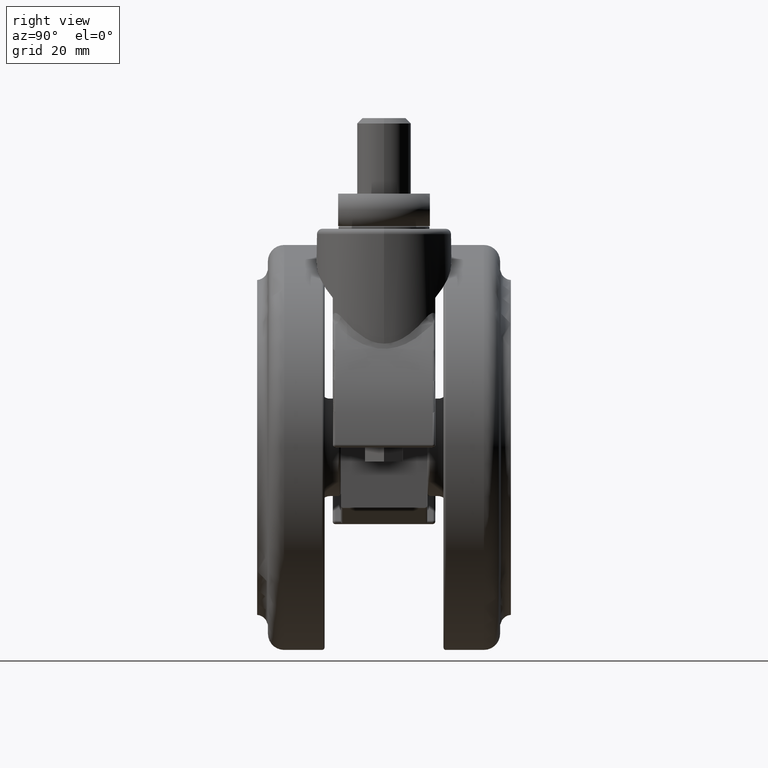
[diagram: clean part render]
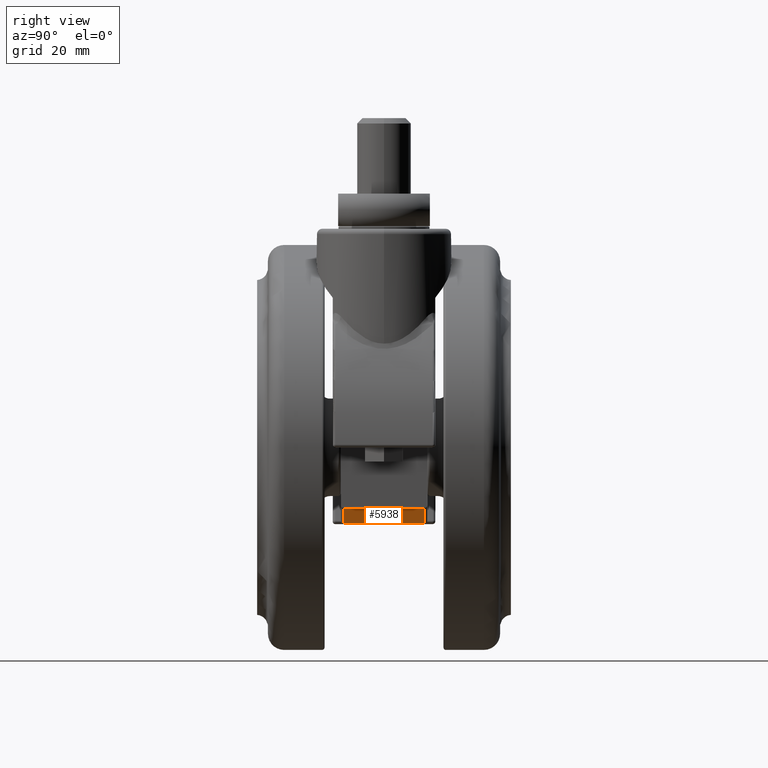
[diagram: same view with one face highlighted and labeled with its STEP entity id]
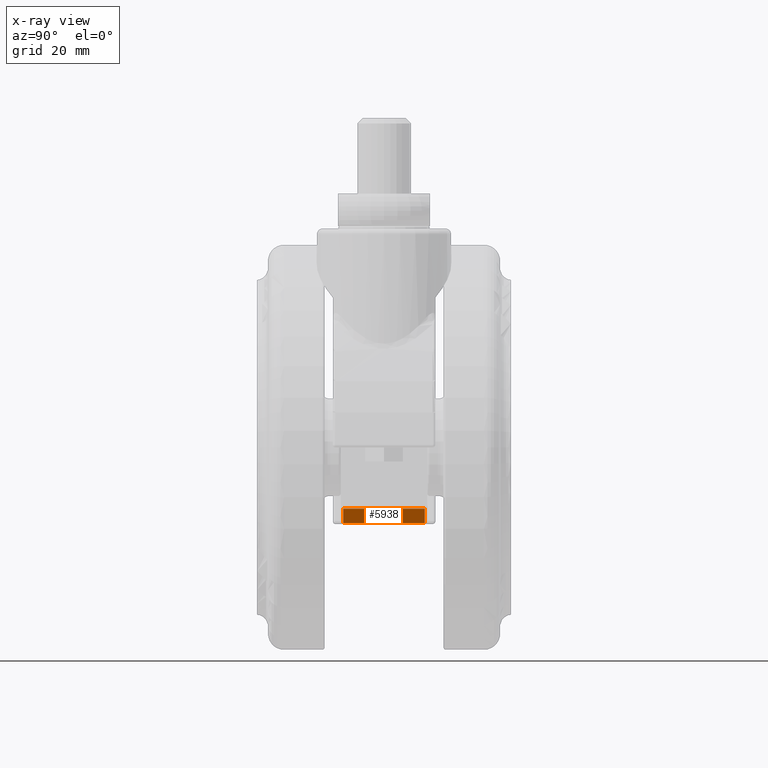
[diagram: x-ray of the same camera — body ghosted, the highlighted face saturated]
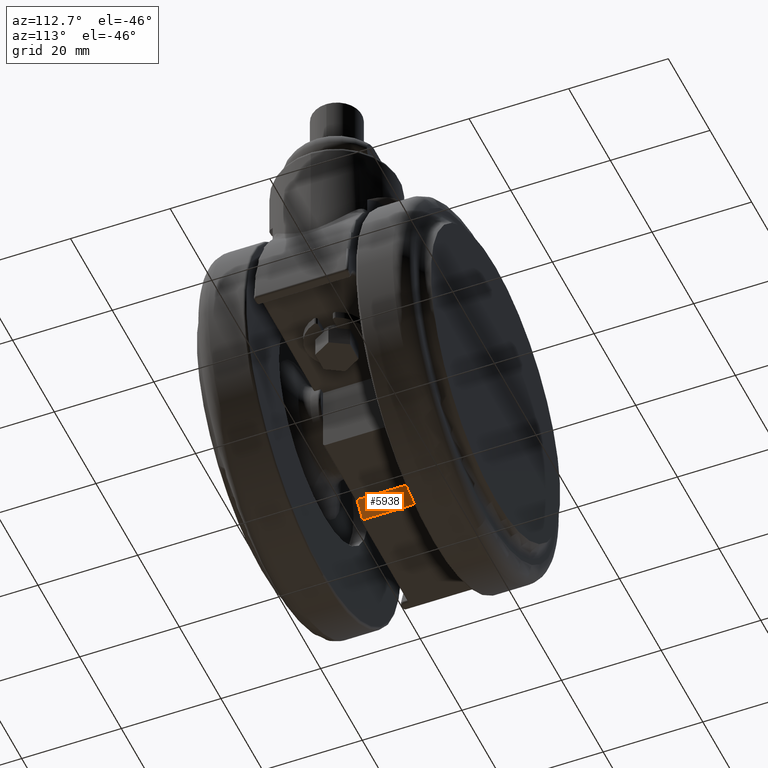
[diagram: same view with one face highlighted and labeled with its STEP entity id]
A machine part, right view. The second image highlights one B-rep face of the part: STEP entity #5938.
The next image is the same camera in x-ray: the body ghosted, the highlighted face saturated — about 0% of this face is hidden behind the body in this view.
A second angle (auxiliary view) of the same face is appended — the face is thin or edge-on in the first view.
In plain terms, the highlighted planar face has unit normal (0.7071, 0, -0.7071).
Its self-contained STEP definition (entity closure, byte-faithful):
#46 = FACE_OUTER_BOUND ( 'NONE', #2133, .T. ) ;
#468 = DIRECTION ( 'NONE',  ( 0.7071067811865480200, 0.0000000000000000000, -0.7071067811865470200 ) ) ;
#615 = AXIS2_PLACEMENT_3D ( 'NONE', #8553, #468, #5191 ) ;
#1186 = CARTESIAN_POINT ( 'NONE',  ( -27.64644660940645000, -7.500000000000000000, -51.84644660940659800 ) ) ;
#1256 = LINE ( 'NONE', #7388, #3061 ) ;
#1444 = ORIENTED_EDGE ( 'NONE', *, *, #4732, .T. ) ;
#1664 = VERTEX_POINT ( 'NONE', #6740 ) ;
#1900 = DIRECTION ( 'NONE',  ( 0.7071067811865470200, -1.064309662652745900E-015, 0.7071067811865480200 ) ) ;
#2133 = EDGE_LOOP ( 'NONE', ( #4261, #2525, #8363, #1444 ) ) ;
#2370 = VERTEX_POINT ( 'NONE', #5173 ) ;
#2406 = VERTEX_POINT ( 'NONE', #1186 ) ;
#2525 = ORIENTED_EDGE ( 'NONE', *, *, #4672, .T. ) ;
#2551 = EDGE_CURVE ( 'NONE', #1664, #2406, #1256, .T. ) ;
#2718 = VECTOR ( 'NONE', #6675, 1000.000000000000000 ) ;
#3061 = VECTOR ( 'NONE', #8051, 1000.000000000000000 ) ;
#3138 = VECTOR ( 'NONE', #1900, 1000.000000000000000 ) ;
#3812 = PLANE ( 'NONE',  #615 ) ;
#4261 = ORIENTED_EDGE ( 'NONE', *, *, #7288, .T. ) ;
#4672 = EDGE_CURVE ( 'NONE', #4876, #1664, #4931, .T. ) ;
#4732 = EDGE_CURVE ( 'NONE', #2406, #2370, #8091, .T. ) ;
#4876 = VERTEX_POINT ( 'NONE', #5268 ) ;
#4931 = LINE ( 'NONE', #5941, #3138 ) ;
#5153 = CARTESIAN_POINT ( 'NONE',  ( -30.35355339059299600, 990.5000000000000000, -54.55355339059320100 ) ) ;
#5173 = CARTESIAN_POINT ( 'NONE',  ( -30.35355339059299600, -7.500000000000000000, -54.55355339059320100 ) ) ;
#5191 = DIRECTION ( 'NONE',  ( -0.7071067811865470200, 0.0000000000000000000, -0.7071067811865480200 ) ) ;
#5268 = CARTESIAN_POINT ( 'NONE',  ( -30.35355339059299600, 7.500000000000000000, -54.55355339059320100 ) ) ;
#5298 = LINE ( 'NONE', #5153, #7114 ) ;
#5839 = DIRECTION ( 'NONE',  ( -0.0000000000000000000, 1.000000000000000000, -0.0000000000000000000 ) ) ;
#5938 = ADVANCED_FACE ( 'NONE', ( #46 ), #3812, .T. ) ;
#5941 = CARTESIAN_POINT ( 'NONE',  ( -30.50000000000049700, 7.500000000000000000, -54.70000000000059300 ) ) ;
#5989 = CARTESIAN_POINT ( 'NONE',  ( -30.50000000000000000, -7.500000000000000000, -54.69999999999999600 ) ) ;
#6675 = DIRECTION ( 'NONE',  ( -0.7071067811865470200, -0.0000000000000000000, -0.7071067811865480200 ) ) ;
#6740 = CARTESIAN_POINT ( 'NONE',  ( -27.64644660940645000, 7.500000000000000000, -51.84644660940659800 ) ) ;
#7114 = VECTOR ( 'NONE', #5839, 1000.000000000000000 ) ;
#7288 = EDGE_CURVE ( 'NONE', #2370, #4876, #5298, .T. ) ;
#7388 = CARTESIAN_POINT ( 'NONE',  ( -27.64644660940645000, -8.000000000000000000, -51.84644660940659800 ) ) ;
#8051 = DIRECTION ( 'NONE',  ( 0.0000000000000000000, -1.000000000000000000, 0.0000000000000000000 ) ) ;
#8091 = LINE ( 'NONE', #5989, #2718 ) ;
#8363 = ORIENTED_EDGE ( 'NONE', *, *, #2551, .T. ) ;
#8553 = CARTESIAN_POINT ( 'NONE',  ( -30.50000000000000000, 990.5000000000000000, -54.69999999999999600 ) ) ;